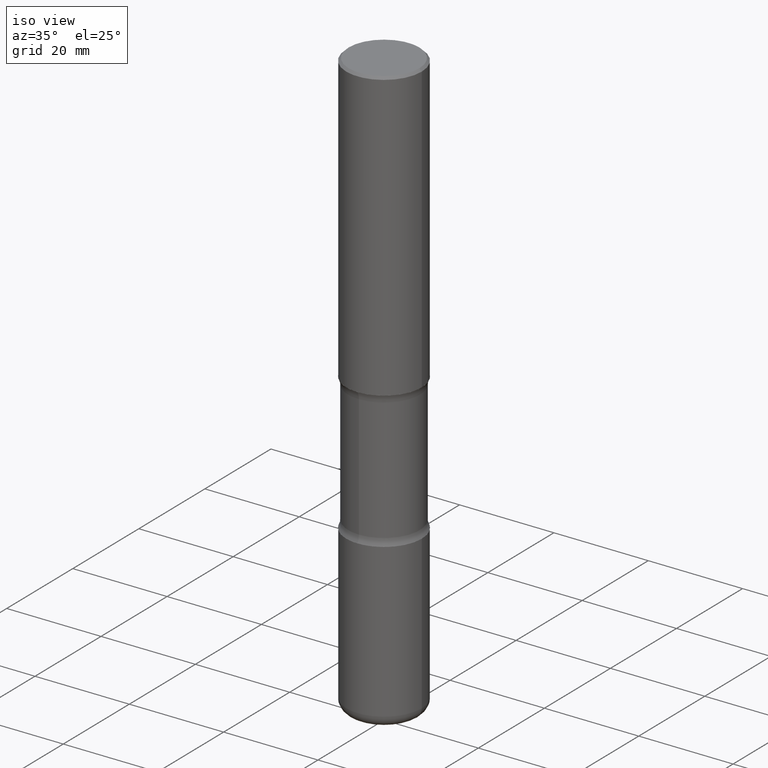
[diagram: clean part render]
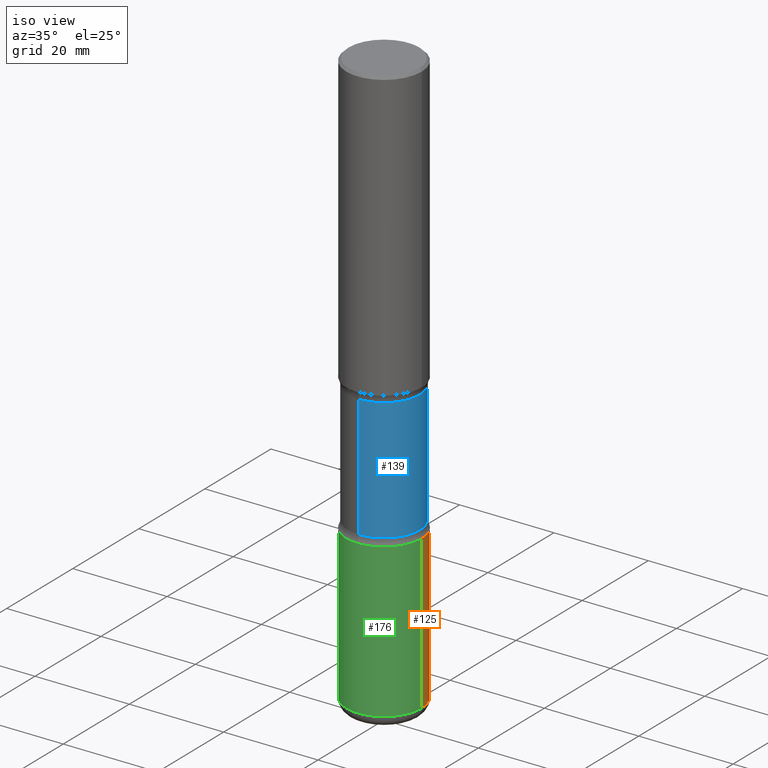
[diagram: same view with three faces highlighted in distinct colors, each labeled with its STEP entity id]
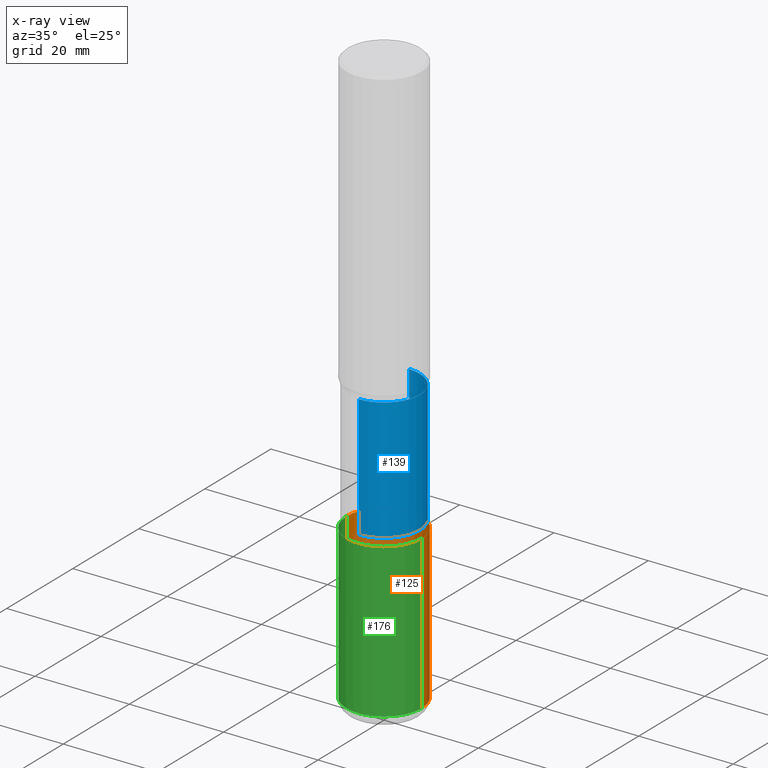
[diagram: x-ray of the same camera — body ghosted, the three highlighted faces saturated]
A machine part, iso view with three faces highlighted in distinct colors.
The next image is the same camera in x-ray (body ghosted, the three faces saturated) — at least one of them is partly hidden behind the body in this view.
Their STEP definitions:

[orange] entity #125 — the highlighted cylindrical surface (partial cylindrical patch) has radius 7.9997 mm, axis along (-0, 0, 1).
#22 = DIRECTION ( 'NONE',  ( -2.445468806185136877E-29, 3.491481338843145188E-15, 1.000000000000000000 ) ) ;
#28 = LINE ( 'NONE', #498, #145 ) ;
#32 = DIRECTION ( 'NONE',  ( -2.445468806185136877E-29, 3.491481338843145188E-15, 1.000000000000000000 ) ) ;
#49 = CARTESIAN_POINT ( 'NONE',  ( -0.3149500000000002853, -1.236736124223832383E-14, -3.543300000000000782 ) ) ;
#81 = EDGE_LOOP ( 'NONE', ( #313, #254, #489, #321 ) ) ;
#83 = DIRECTION ( 'NONE',  ( 1.000000000000000000, -6.982962677686268288E-15, 0.000000000000000000 ) ) ;
#88 = AXIS2_PLACEMENT_3D ( 'NONE', #214, #507, #423 ) ;
#105 = VECTOR ( 'NONE', #32, 39.37007874015748143 ) ;
#108 = EDGE_CURVE ( 'NONE', #476, #519, #289, .T. ) ;
#114 = LINE ( 'NONE', #121, #105 ) ;
#121 = CARTESIAN_POINT ( 'NONE',  ( 0.3149500000000002853, -2.199284095337291843E-15, 1.535751875536931531E-29 ) ) ;
#125 = ADVANCED_FACE ( 'NONE', ( #413 ), #518, .T. ) ;
#142 = CARTESIAN_POINT ( 'NONE',  ( 0.000000000000000000, 0.000000000000000000, 0.000000000000000000 ) ) ;
#145 = VECTOR ( 'NONE', #22, 39.37007874015748143 ) ;
#146 = VERTEX_POINT ( 'NONE', #285 ) ;
#177 = EDGE_CURVE ( 'NONE', #519, #441, #28, .T. ) ;
#214 = CARTESIAN_POINT ( 'NONE',  ( 8.665029620955796311E-29, -1.237136582792292023E-14, -3.543300000000000782 ) ) ;
#217 = CARTESIAN_POINT ( 'NONE',  ( 0.3149500000000003963, -1.903834944444389400E-14, -4.822899999999998855 ) ) ;
#254 = ORIENTED_EDGE ( 'NONE', *, *, #177, .T. ) ;
#260 = CIRCLE ( 'NONE', #88, 0.3149500000000002853 ) ;
#285 = CARTESIAN_POINT ( 'NONE',  ( 0.3149500000000002853, -1.457064992326021168E-14, -3.543300000000000782 ) ) ;
#289 = CIRCLE ( 'NONE', #525, 0.3149500000000003408 ) ;
#305 = EDGE_CURVE ( 'NONE', #476, #146, #114, .T. ) ;
#313 = ORIENTED_EDGE ( 'NONE', *, *, #108, .T. ) ;
#321 = ORIENTED_EDGE ( 'NONE', *, *, #305, .F. ) ;
#341 = DIRECTION ( 'NONE',  ( -2.445468806185136597E-29, 3.491481338843145583E-15, 1.000000000000000000 ) ) ;
#367 = DIRECTION ( 'NONE',  ( 1.000000000000000000, -6.982962677686267499E-15, 4.876176775795936353E-29 ) ) ;
#394 = CARTESIAN_POINT ( 'NONE',  ( -0.3149500000000003963, -1.460121100283016342E-14, -4.822899999999998855 ) ) ;
#402 = EDGE_CURVE ( 'NONE', #146, #441, #260, .T. ) ;
#413 = FACE_OUTER_BOUND ( 'NONE', #81, .T. ) ;
#423 = DIRECTION ( 'NONE',  ( 1.000000000000000000, -6.982962677686263555E-15, 0.000000000000000000 ) ) ;
#437 = DIRECTION ( 'NONE',  ( -2.445468806185136597E-29, 3.491481338843145583E-15, 1.000000000000000000 ) ) ;
#441 = VERTEX_POINT ( 'NONE', #49 ) ;
#476 = VERTEX_POINT ( 'NONE', #217 ) ;
#479 = CARTESIAN_POINT ( 'NONE',  ( 1.179425150535028983E-28, -1.683906534910660256E-14, -4.822899999999998855 ) ) ;
#489 = ORIENTED_EDGE ( 'NONE', *, *, #402, .F. ) ;
#498 = CARTESIAN_POINT ( 'NONE',  ( -0.3149500000000002853, 2.237854346276437562E-15, -1.549218606675783797E-29 ) ) ;
#507 = DIRECTION ( 'NONE',  ( -2.445468806185136597E-29, 3.491481338843145583E-15, 1.000000000000000000 ) ) ;
#518 = CYLINDRICAL_SURFACE ( 'NONE', #546, 0.3149500000000002853 ) ;
#519 = VERTEX_POINT ( 'NONE', #394 ) ;
#525 = AXIS2_PLACEMENT_3D ( 'NONE', #479, #341, #83 ) ;
#546 = AXIS2_PLACEMENT_3D ( 'NONE', #142, #437, #367 ) ;

[blue] entity #139 — the highlighted cylindrical surface (partial cylindrical patch) has radius 7.5997 mm, axis along (0, -0, -1).
#6 = ORIENTED_EDGE ( 'NONE', *, *, #440, .F. ) ;
#10 = ORIENTED_EDGE ( 'NONE', *, *, #533, .T. ) ;
#27 = VERTEX_POINT ( 'NONE', #135 ) ;
#80 = ORIENTED_EDGE ( 'NONE', *, *, #475, .F. ) ;
#85 = CARTESIAN_POINT ( 'NONE',  ( 5.946459227533120264E-29, -8.704790342317601483E-15, -2.462340740035005471 ) ) ;
#99 = VECTOR ( 'NONE', #514, 39.37007874015748143 ) ;
#122 = AXIS2_PLACEMENT_3D ( 'NONE', #512, #173, #199 ) ;
#135 = CARTESIAN_POINT ( 'NONE',  ( -2.106687422665607929E-15, -0.2992000000000121784, -3.482559259964995491 ) ) ;
#138 = CIRCLE ( 'NONE', #425, 0.2992000000000000215 ) ;
#139 = ADVANCED_FACE ( 'NONE', ( #258 ), #162, .T. ) ;
#162 = CYLINDRICAL_SURFACE ( 'NONE', #122, 0.2992000000000000215 ) ;
#173 = DIRECTION ( 'NONE',  ( 2.514961011121466661E-29, -3.391964546123646738E-15, -1.000000000000000000 ) ) ;
#199 = DIRECTION ( 'NONE',  ( 6.982962677686265922E-15, 1.000000000000000000, -3.652203200085913145E-15 ) ) ;
#207 = CARTESIAN_POINT ( 'NONE',  ( 2.089302433163852292E-15, 0.2991999999999829796, -4.921300000000002228 ) ) ;
#235 = ORIENTED_EDGE ( 'NONE', *, *, #363, .T. ) ;
#258 = FACE_OUTER_BOUND ( 'NONE', #550, .T. ) ;
#263 = CARTESIAN_POINT ( 'NONE',  ( 2.089302433163790366E-15, 0.2991999999999913062, -2.462340740035006359 ) ) ;
#265 = CARTESIAN_POINT ( 'NONE',  ( 8.512269027981096619E-29, -1.216533539121887276E-14, -3.482559259964996379 ) ) ;
#300 = VECTOR ( 'NONE', #429, 39.37007874015748143 ) ;
#302 = LINE ( 'NONE', #207, #300 ) ;
#303 = DIRECTION ( 'NONE',  ( 6.982962677686265922E-15, 1.000000000000000000, -3.652203200085913145E-15 ) ) ;
#363 = EDGE_CURVE ( 'NONE', #407, #427, #424, .T. ) ;
#381 = DIRECTION ( 'NONE',  ( 2.514961011121466661E-29, -3.391964546123646738E-15, -1.000000000000000000 ) ) ;
#405 = AXIS2_PLACEMENT_3D ( 'NONE', #85, #381, #426 ) ;
#407 = VERTEX_POINT ( 'NONE', #263 ) ;
#424 = CIRCLE ( 'NONE', #405, 0.2992000000000000215 ) ;
#425 = AXIS2_PLACEMENT_3D ( 'NONE', #265, #553, #303 ) ;
#426 = DIRECTION ( 'NONE',  ( 6.982962677686265922E-15, 1.000000000000000000, -3.652203200085913145E-15 ) ) ;
#427 = VERTEX_POINT ( 'NONE', #513 ) ;
#429 = DIRECTION ( 'NONE',  ( 2.514961011121466661E-29, -3.391964546123647133E-15, -1.000000000000000000 ) ) ;
#440 = EDGE_CURVE ( 'NONE', #480, #27, #138, .T. ) ;
#475 = EDGE_CURVE ( 'NONE', #407, #480, #302, .T. ) ;
#480 = VERTEX_POINT ( 'NONE', #551 ) ;
#484 = LINE ( 'NONE', #520, #99 ) ;
#512 = CARTESIAN_POINT ( 'NONE',  ( 1.213064589428117588E-28, -1.704549297248130466E-14, -4.921300000000000452 ) ) ;
#513 = CARTESIAN_POINT ( 'NONE',  ( -2.106687422665635539E-15, -0.2992000000000087367, -2.462340740035004139 ) ) ;
#514 = DIRECTION ( 'NONE',  ( 2.514961011121466661E-29, -3.391964546123647133E-15, -1.000000000000000000 ) ) ;
#520 = CARTESIAN_POINT ( 'NONE',  ( -2.052661000933121010E-15, -0.2992000000000170634, -4.921299999999999564 ) ) ;
#533 = EDGE_CURVE ( 'NONE', #427, #27, #484, .T. ) ;
#550 = EDGE_LOOP ( 'NONE', ( #235, #10, #6, #80 ) ) ;
#551 = CARTESIAN_POINT ( 'NONE',  ( 2.089302433163816004E-15, 0.2991999999999878646, -3.482559259964997711 ) ) ;
#553 = DIRECTION ( 'NONE',  ( 2.514961011121466661E-29, -3.391964546123646738E-15, -1.000000000000000000 ) ) ;

[green] entity #176 — the highlighted cylindrical surface (partial cylindrical patch) has radius 7.9997 mm, axis along (-0, 0, 1).
#18 = CARTESIAN_POINT ( 'NONE',  ( 1.179425150535028983E-28, -1.683906534910660256E-14, -4.822899999999998855 ) ) ;
#22 = DIRECTION ( 'NONE',  ( -2.445468806185136877E-29, 3.491481338843145188E-15, 1.000000000000000000 ) ) ;
#28 = LINE ( 'NONE', #498, #145 ) ;
#32 = DIRECTION ( 'NONE',  ( -2.445468806185136877E-29, 3.491481338843145188E-15, 1.000000000000000000 ) ) ;
#49 = CARTESIAN_POINT ( 'NONE',  ( -0.3149500000000002853, -1.236736124223832383E-14, -3.543300000000000782 ) ) ;
#62 = ORIENTED_EDGE ( 'NONE', *, *, #305, .T. ) ;
#65 = CYLINDRICAL_SURFACE ( 'NONE', #453, 0.3149500000000002853 ) ;
#71 = DIRECTION ( 'NONE',  ( 1.000000000000000000, -6.982962677686267499E-15, 4.876176775795936353E-29 ) ) ;
#105 = VECTOR ( 'NONE', #32, 39.37007874015748143 ) ;
#114 = LINE ( 'NONE', #121, #105 ) ;
#121 = CARTESIAN_POINT ( 'NONE',  ( 0.3149500000000002853, -2.199284095337291843E-15, 1.535751875536931531E-29 ) ) ;
#128 = DIRECTION ( 'NONE',  ( 1.000000000000000000, -6.982962677686263555E-15, 0.000000000000000000 ) ) ;
#143 = ORIENTED_EDGE ( 'NONE', *, *, #334, .F. ) ;
#145 = VECTOR ( 'NONE', #22, 39.37007874015748143 ) ;
#146 = VERTEX_POINT ( 'NONE', #285 ) ;
#154 = EDGE_LOOP ( 'NONE', ( #438, #458, #62, #143 ) ) ;
#176 = ADVANCED_FACE ( 'NONE', ( #241 ), #65, .T. ) ;
#177 = EDGE_CURVE ( 'NONE', #519, #441, #28, .T. ) ;
#192 = CARTESIAN_POINT ( 'NONE',  ( 0.000000000000000000, 0.000000000000000000, 0.000000000000000000 ) ) ;
#197 = CIRCLE ( 'NONE', #275, 0.3149500000000003408 ) ;
#216 = AXIS2_PLACEMENT_3D ( 'NONE', #377, #342, #128 ) ;
#217 = CARTESIAN_POINT ( 'NONE',  ( 0.3149500000000003963, -1.903834944444389400E-14, -4.822899999999998855 ) ) ;
#241 = FACE_OUTER_BOUND ( 'NONE', #154, .T. ) ;
#257 = EDGE_CURVE ( 'NONE', #519, #476, #197, .T. ) ;
#275 = AXIS2_PLACEMENT_3D ( 'NONE', #18, #332, #541 ) ;
#285 = CARTESIAN_POINT ( 'NONE',  ( 0.3149500000000002853, -1.457064992326021168E-14, -3.543300000000000782 ) ) ;
#305 = EDGE_CURVE ( 'NONE', #476, #146, #114, .T. ) ;
#327 = CIRCLE ( 'NONE', #216, 0.3149500000000002853 ) ;
#332 = DIRECTION ( 'NONE',  ( -2.445468806185136597E-29, 3.491481338843145583E-15, 1.000000000000000000 ) ) ;
#334 = EDGE_CURVE ( 'NONE', #441, #146, #327, .T. ) ;
#342 = DIRECTION ( 'NONE',  ( -2.445468806185136597E-29, 3.491481338843145583E-15, 1.000000000000000000 ) ) ;
#377 = CARTESIAN_POINT ( 'NONE',  ( 8.665029620955796311E-29, -1.237136582792292023E-14, -3.543300000000000782 ) ) ;
#394 = CARTESIAN_POINT ( 'NONE',  ( -0.3149500000000003963, -1.460121100283016342E-14, -4.822899999999998855 ) ) ;
#411 = DIRECTION ( 'NONE',  ( -2.445468806185136597E-29, 3.491481338843145583E-15, 1.000000000000000000 ) ) ;
#438 = ORIENTED_EDGE ( 'NONE', *, *, #177, .F. ) ;
#441 = VERTEX_POINT ( 'NONE', #49 ) ;
#453 = AXIS2_PLACEMENT_3D ( 'NONE', #192, #411, #71 ) ;
#458 = ORIENTED_EDGE ( 'NONE', *, *, #257, .T. ) ;
#476 = VERTEX_POINT ( 'NONE', #217 ) ;
#498 = CARTESIAN_POINT ( 'NONE',  ( -0.3149500000000002853, 2.237854346276437562E-15, -1.549218606675783797E-29 ) ) ;
#519 = VERTEX_POINT ( 'NONE', #394 ) ;
#541 = DIRECTION ( 'NONE',  ( 1.000000000000000000, -6.982962677686268288E-15, 0.000000000000000000 ) ) ;